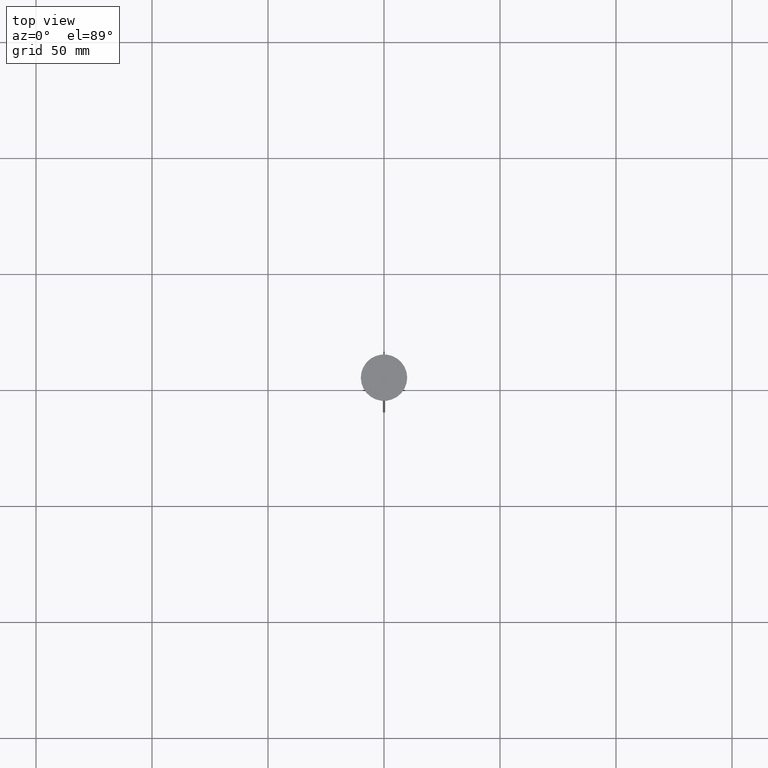
[diagram: clean part render]
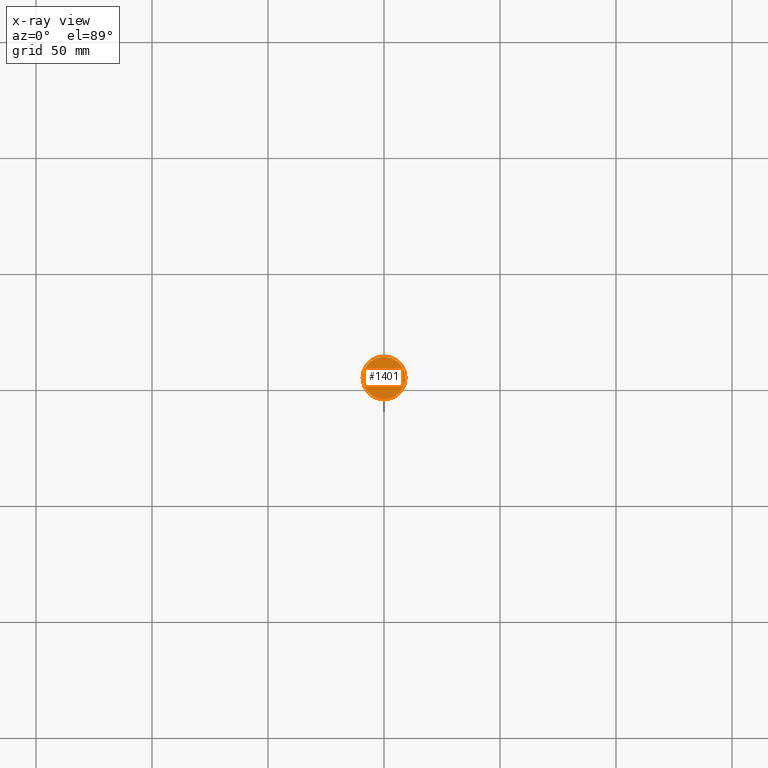
[diagram: x-ray — body ghosted, one internal face saturated and labeled with its STEP entity id]
A machine part, top view, then the same camera in x-ray: the body is ghosted and one INTERNAL B-rep face — a face not visible from any outside direction — is saturated and labeled: STEP entity #1401.
In plain terms, the highlighted planar face has unit normal (0, 0, -1).
Its self-contained STEP definition (entity closure, byte-faithful):
#105 = CARTESIAN_POINT ( 'NONE',  ( -9.200000000000001066, 0.000000000000000000, -12.00000000000000000 ) ) ;
#193 = VERTEX_POINT ( 'NONE', #105 ) ;
#215 = ORIENTED_EDGE ( 'NONE', *, *, #2086, .T. ) ;
#463 = EDGE_CURVE ( 'NONE', #734, #193, #1555, .T. ) ;
#670 = DIRECTION ( 'NONE',  ( -0.000000000000000000, -0.000000000000000000, 1.000000000000000000 ) ) ;
#734 = VERTEX_POINT ( 'NONE', #2652 ) ;
#786 = CIRCLE ( 'NONE', #1080, 9.200000000000001066 ) ;
#951 = AXIS2_PLACEMENT_3D ( 'NONE', #2171, #2592, #2365 ) ;
#1080 = AXIS2_PLACEMENT_3D ( 'NONE', #1653, #670, #1453 ) ;
#1294 = ORIENTED_EDGE ( 'NONE', *, *, #463, .T. ) ;
#1382 = AXIS2_PLACEMENT_3D ( 'NONE', #2127, #1911, #1500 ) ;
#1401 = ADVANCED_FACE ( 'NONE', ( #1538 ), #1960, .F. ) ;
#1453 = DIRECTION ( 'NONE',  ( -1.000000000000000000, 0.000000000000000000, 0.000000000000000000 ) ) ;
#1500 = DIRECTION ( 'NONE',  ( -1.000000000000000000, 0.000000000000000000, 0.000000000000000000 ) ) ;
#1538 = FACE_OUTER_BOUND ( 'NONE', #2457, .T. ) ;
#1555 = CIRCLE ( 'NONE', #1382, 9.200000000000001066 ) ;
#1653 = CARTESIAN_POINT ( 'NONE',  ( 0.000000000000000000, 0.000000000000000000, -12.00000000000000000 ) ) ;
#1911 = DIRECTION ( 'NONE',  ( -0.000000000000000000, -0.000000000000000000, 1.000000000000000000 ) ) ;
#1960 = PLANE ( 'NONE',  #951 ) ;
#2086 = EDGE_CURVE ( 'NONE', #193, #734, #786, .T. ) ;
#2127 = CARTESIAN_POINT ( 'NONE',  ( 0.000000000000000000, 0.000000000000000000, -12.00000000000000000 ) ) ;
#2171 = CARTESIAN_POINT ( 'NONE',  ( 0.000000000000000000, 0.000000000000000000, -12.00000000000000000 ) ) ;
#2365 = DIRECTION ( 'NONE',  ( -1.000000000000000000, 0.000000000000000000, -0.000000000000000000 ) ) ;
#2457 = EDGE_LOOP ( 'NONE', ( #215, #1294 ) ) ;
#2592 = DIRECTION ( 'NONE',  ( 0.000000000000000000, 0.000000000000000000, -1.000000000000000000 ) ) ;
#2652 = CARTESIAN_POINT ( 'NONE',  ( 9.200000000000001066, 1.145044757202775450E-15, -12.00000000000000000 ) ) ;